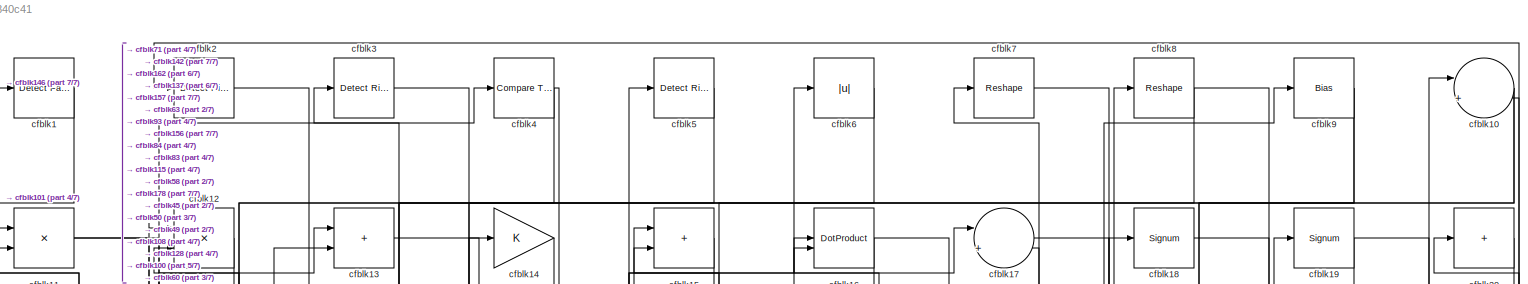
[diagram: root canvas - part 1/7, full width, top band]
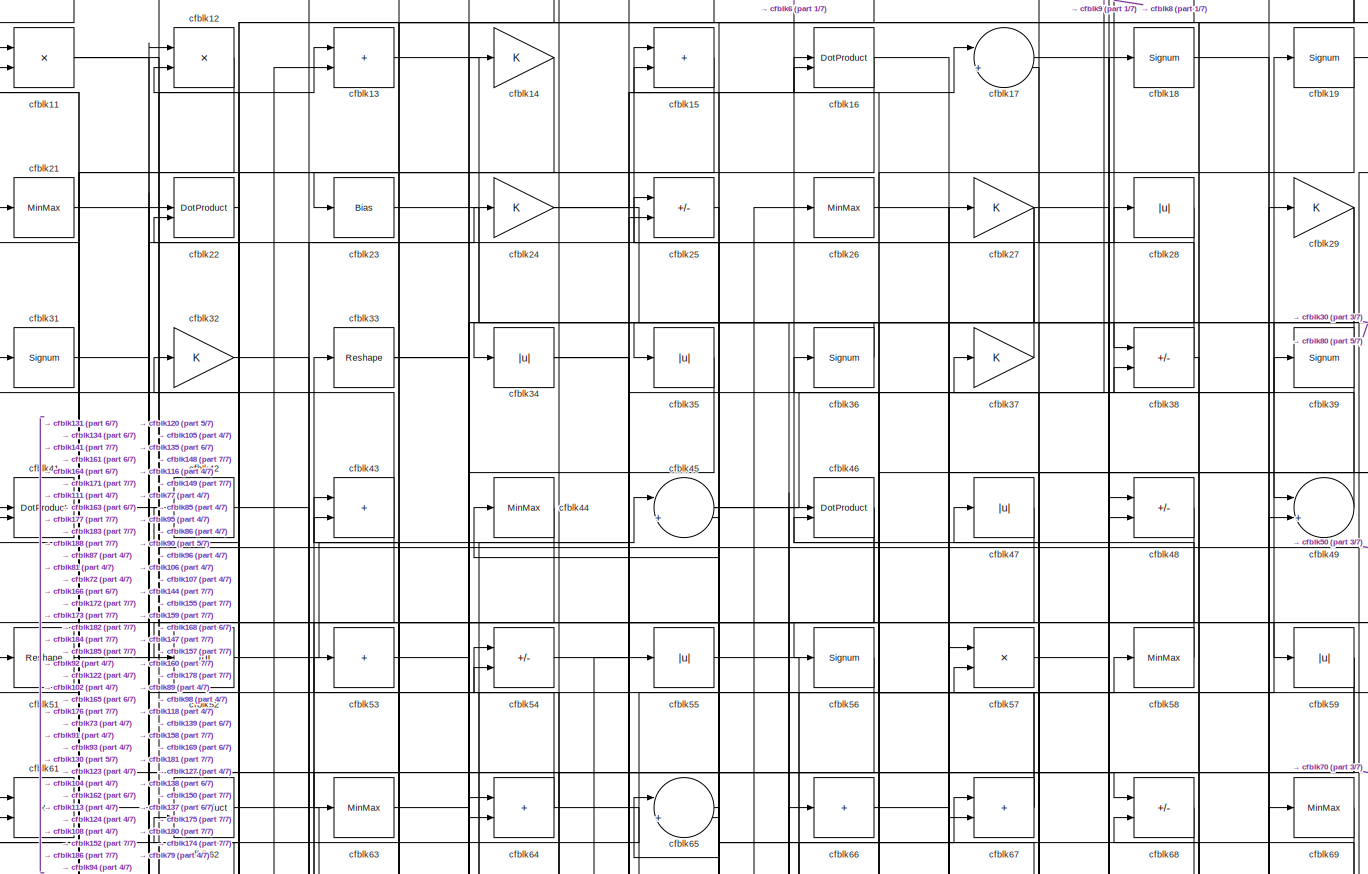
[diagram: root canvas - part 2/7, full width, top band]
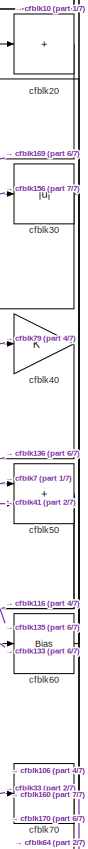
[diagram: root canvas - part 3/7, top right region]
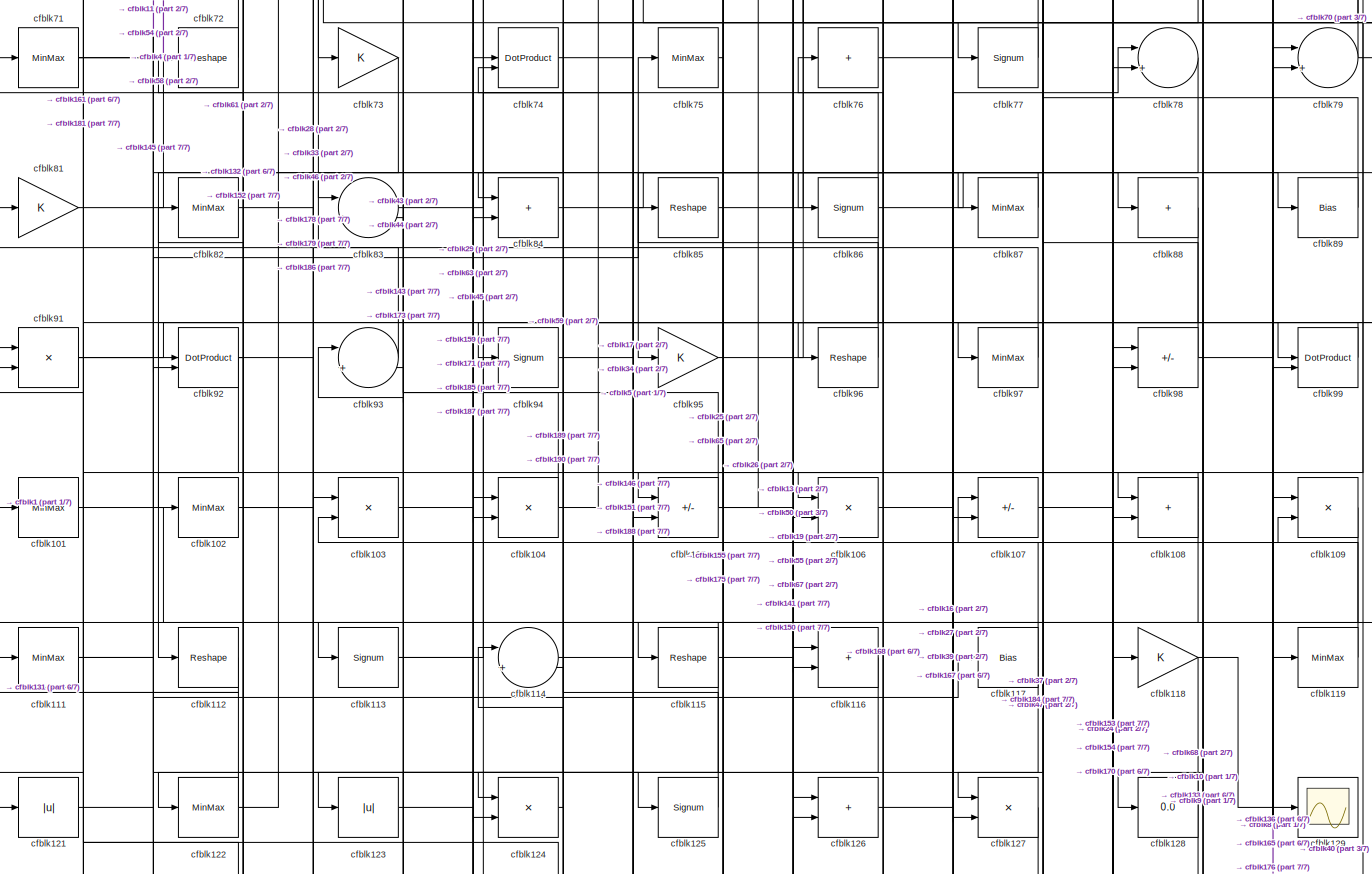
[diagram: root canvas - part 4/7, full width, middle band]
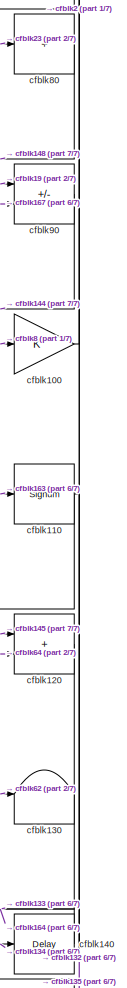
[diagram: root canvas - part 5/7, middle right region]
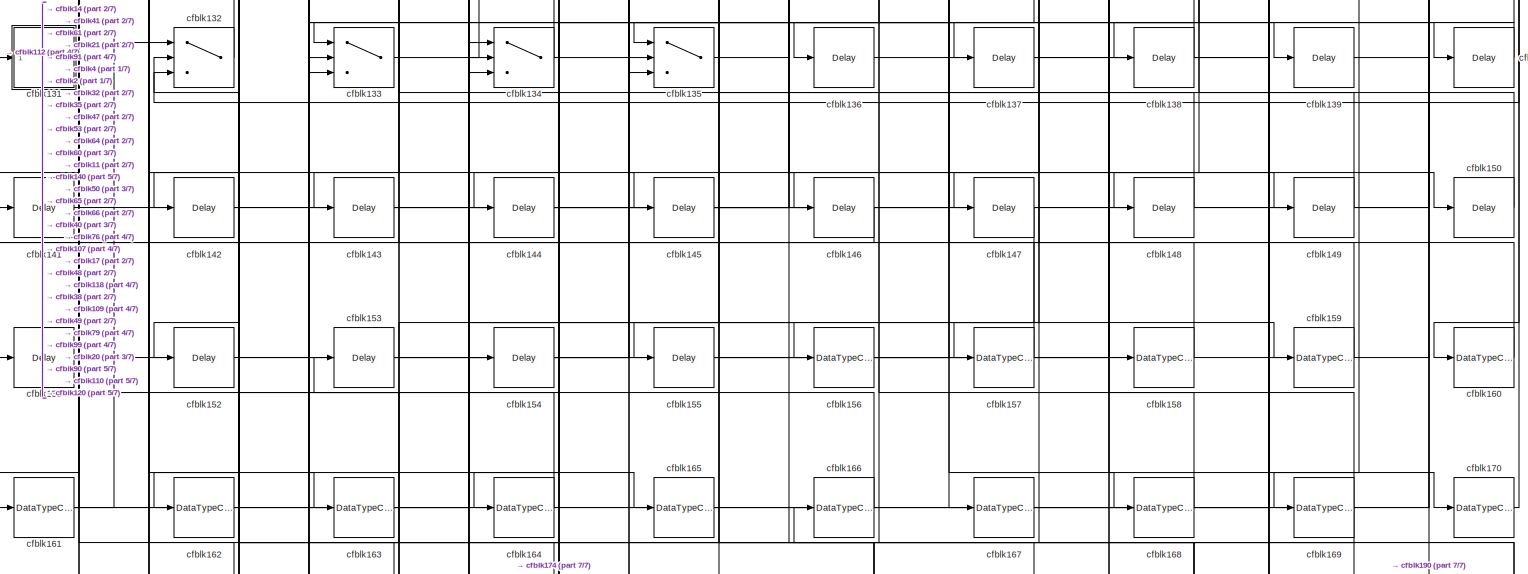
[diagram: root canvas - part 6/7, full width, bottom band]
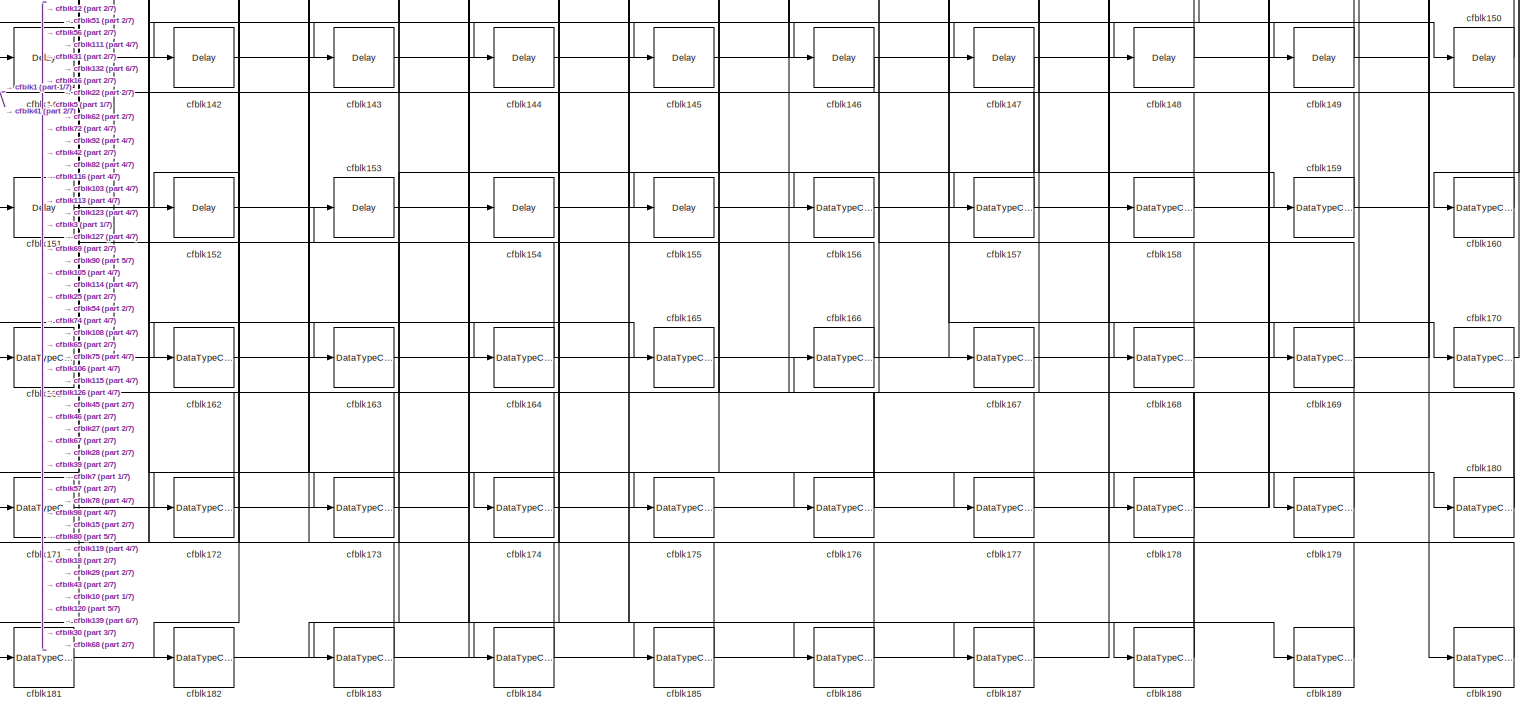
[diagram: root canvas - part 7/7, full width, bottom band]
MODEL slx_db7d32840c41
KIND model
CONFIG AbsTol = auto
CONFIG EnableMultiTasking = off
CONFIG FixedStep = auto
CONFIG MaxStep = auto
CONFIG MinStep = auto
CONFIG RelTol = 1e-3
CONFIG SampleTimeConstraint = Unconstrained
CONFIG SolverName = VariableStepAuto
CONFIG StartTime = 0.0
CONFIG StopTime = 10.0
BLOCK [Reference] cfblk1  REF=hdlsllib/Logic and Bit
Operations/Detect Fall
Nonpositive
  SourceBlock = hdlsllib/Logic and Bit\nOperations/Detect Fall\nNonpositive
  SourceType = Detect Fall Nonpositive
BLOCK [Sum] cfblk10
  Inputs = |++
BLOCK [Gain] cfblk100
BLOCK [MinMax] cfblk101
BLOCK [MinMax] cfblk102
BLOCK [Product] cfblk103
  Inputs = */
  RndMeth = Zero
  SaturateOnIntegerOverflow = on
BLOCK [Product] cfblk104
  Inputs = */
  RndMeth = Zero
  SaturateOnIntegerOverflow = on
BLOCK [Sum] cfblk105
  IconShape = rectangular
  Inputs = +-
BLOCK [Product] cfblk106
  Inputs = */
  RndMeth = Zero
  SaturateOnIntegerOverflow = on
BLOCK [Sum] cfblk107
  IconShape = rectangular
  Inputs = +-
BLOCK [Sum] cfblk108
  IconShape = rectangular
BLOCK [Product] cfblk109
  Inputs = */
  RndMeth = Zero
  SaturateOnIntegerOverflow = on
BLOCK [Product] cfblk11
  Inputs = */
  RndMeth = Zero
  SaturateOnIntegerOverflow = on
BLOCK [Signum] cfblk110
BLOCK [MinMax] cfblk111
BLOCK [Reshape] cfblk112
BLOCK [Signum] cfblk113
BLOCK [Sum] cfblk114
  Inputs = |++
BLOCK [Reshape] cfblk115
BLOCK [Sum] cfblk116
  IconShape = rectangular
BLOCK [Bias] cfblk117
  Bias = 0.0
  SaturateOnIntegerOverflow = off
BLOCK [Gain] cfblk118
BLOCK [MinMax] cfblk119
BLOCK [Product] cfblk12
  Inputs = */
  RndMeth = Zero
  SaturateOnIntegerOverflow = on
BLOCK [Sum] cfblk120
  IconShape = rectangular
BLOCK [Abs] cfblk121
  SaturateOnIntegerOverflow = off
BLOCK [MinMax] cfblk122
BLOCK [Abs] cfblk123
  SaturateOnIntegerOverflow = off
BLOCK [Product] cfblk124
  Inputs = */
  RndMeth = Zero
  SaturateOnIntegerOverflow = on
BLOCK [Signum] cfblk125
BLOCK [Sum] cfblk126
  IconShape = rectangular
BLOCK [Product] cfblk127
  Inputs = */
  RndMeth = Zero
  SaturateOnIntegerOverflow = on
BLOCK [Display] cfblk128
  Decimation = 1
BLOCK [Scope] cfblk129
  Floating = off
  NumInputPorts = 1
  ScopeSpecificationString = Simulink.scopes.TimeScopeBlockCfg('CurrentConfiguration', extmgr.ConfigurationSet(extmgr.Configuration('Core','General UI',true),extmgr.Configuration('Core','Source UI',true),extmgr.Configuration('Sources','WiredSimulink',true,'DataLoggingVariableName','ScopeData2','DataLoggingSaveFormat','Array','DataLoggingLimitDataPoints',true,'DataLoggingDecimation','1'),extmgr.Configuration('Visuals','Time Do...<+868ch>
BLOCK [Sum] cfblk13
  IconShape = rectangular
BLOCK [Terminator] cfblk130
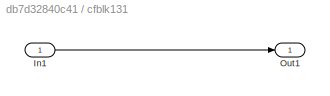
BLOCK [SubSystem] cfblk131
  LibrarySourceBlock = hdlsllib/Ports &\nSubsystems/Subsystem
BLOCK [Inport] cfblk131/In1
BLOCK [Outport] cfblk131/Out1
BLOCK [Switch] cfblk132
  InputSameDT = off
  SaturateOnIntegerOverflow = off
BLOCK [Switch] cfblk133
  InputSameDT = off
  SaturateOnIntegerOverflow = off
BLOCK [Switch] cfblk134
  InputSameDT = off
  SaturateOnIntegerOverflow = off
BLOCK [Switch] cfblk135
  InputSameDT = off
  SaturateOnIntegerOverflow = off
BLOCK [Delay] cfblk136
  InputPortMap = u0
  SampleTime = 1
BLOCK [Delay] cfblk137
  InputPortMap = u0
  SampleTime = 1
BLOCK [Delay] cfblk138
  InputPortMap = u0
  SampleTime = 1
BLOCK [Delay] cfblk139
  InputPortMap = u0
  SampleTime = 1
BLOCK [Gain] cfblk14
BLOCK [Delay] cfblk140
  InputPortMap = u0
  SampleTime = 1
BLOCK [Delay] cfblk141
  InputPortMap = u0
  SampleTime = 1
BLOCK [Delay] cfblk142
  InputPortMap = u0
  SampleTime = 1
BLOCK [Delay] cfblk143
  InputPortMap = u0
  SampleTime = 1
BLOCK [Delay] cfblk144
  InputPortMap = u0
  SampleTime = 1
BLOCK [Delay] cfblk145
  InputPortMap = u0
  SampleTime = 1
BLOCK [Delay] cfblk146
  InputPortMap = u0
  SampleTime = 1
BLOCK [Delay] cfblk147
  InputPortMap = u0
  SampleTime = 1
BLOCK [Delay] cfblk148
  InputPortMap = u0
  SampleTime = 1
BLOCK [Delay] cfblk149
  InputPortMap = u0
  SampleTime = 1
BLOCK [Sum] cfblk15
  IconShape = rectangular
BLOCK [Delay] cfblk150
  InputPortMap = u0
  SampleTime = 1
BLOCK [Delay] cfblk151
  InputPortMap = u0
  SampleTime = 1
BLOCK [Delay] cfblk152
  InputPortMap = u0
  SampleTime = 1
BLOCK [Delay] cfblk153
  InputPortMap = u0
  SampleTime = 1
BLOCK [Delay] cfblk154
  InputPortMap = u0
  SampleTime = 1
BLOCK [Delay] cfblk155
  InputPortMap = u0
  SampleTime = 1
BLOCK [DataTypeConversion] cfblk156
  OutDataTypeStr = uint8
  RndMeth = Floor
  SaturateOnIntegerOverflow = off
BLOCK [DataTypeConversion] cfblk157
  OutDataTypeStr = uint8
  RndMeth = Floor
  SaturateOnIntegerOverflow = off
BLOCK [DataTypeConversion] cfblk158
  OutDataTypeStr = uint8
  RndMeth = Floor
  SaturateOnIntegerOverflow = off
BLOCK [DataTypeConversion] cfblk159
  OutDataTypeStr = uint8
  RndMeth = Floor
  SaturateOnIntegerOverflow = off
BLOCK [DotProduct] cfblk16
  OutDataTypeStr = Inherit: Inherit via internal rule
BLOCK [DataTypeConversion] cfblk160
  OutDataTypeStr = uint8
  RndMeth = Floor
  SaturateOnIntegerOverflow = off
BLOCK [DataTypeConversion] cfblk161
  RndMeth = Floor
  SaturateOnIntegerOverflow = off
BLOCK [DataTypeConversion] cfblk162
  OutDataTypeStr = uint8
  RndMeth = Floor
  SaturateOnIntegerOverflow = off
BLOCK [DataTypeConversion] cfblk163
  OutDataTypeStr = uint8
  RndMeth = Floor
  SaturateOnIntegerOverflow = off
BLOCK [DataTypeConversion] cfblk164
  OutDataTypeStr = uint8
  RndMeth = Floor
  SaturateOnIntegerOverflow = off
BLOCK [DataTypeConversion] cfblk165
  OutDataTypeStr = uint8
  RndMeth = Floor
  SaturateOnIntegerOverflow = off
BLOCK [DataTypeConversion] cfblk166
  OutDataTypeStr = uint8
  RndMeth = Floor
  SaturateOnIntegerOverflow = off
BLOCK [DataTypeConversion] cfblk167
  OutDataTypeStr = uint8
  RndMeth = Floor
  SaturateOnIntegerOverflow = off
BLOCK [DataTypeConversion] cfblk168
  OutDataTypeStr = uint8
  RndMeth = Floor
  SaturateOnIntegerOverflow = off
BLOCK [DataTypeConversion] cfblk169
  RndMeth = Floor
  SaturateOnIntegerOverflow = off
BLOCK [Sum] cfblk17
  Inputs = |++
BLOCK [DataTypeConversion] cfblk170
  OutDataTypeStr = uint8
  RndMeth = Floor
  SaturateOnIntegerOverflow = off
BLOCK [DataTypeConversion] cfblk171
  OutDataTypeStr = uint8
  RndMeth = Floor
  SaturateOnIntegerOverflow = off
BLOCK [DataTypeConversion] cfblk172
  OutDataTypeStr = uint8
  RndMeth = Floor
  SaturateOnIntegerOverflow = off
BLOCK [DataTypeConversion] cfblk173
  OutDataTypeStr = uint8
  RndMeth = Floor
  SaturateOnIntegerOverflow = off
BLOCK [DataTypeConversion] cfblk174
  RndMeth = Floor
  SaturateOnIntegerOverflow = off
BLOCK [DataTypeConversion] cfblk175
  OutDataTypeStr = uint8
  RndMeth = Floor
  SaturateOnIntegerOverflow = off
BLOCK [DataTypeConversion] cfblk176
  RndMeth = Floor
  SaturateOnIntegerOverflow = off
BLOCK [DataTypeConversion] cfblk177
  OutDataTypeStr = uint8
  RndMeth = Floor
  SaturateOnIntegerOverflow = off
BLOCK [DataTypeConversion] cfblk178
  RndMeth = Floor
  SaturateOnIntegerOverflow = off
BLOCK [DataTypeConversion] cfblk179
  OutDataTypeStr = uint8
  RndMeth = Floor
  SaturateOnIntegerOverflow = off
BLOCK [Signum] cfblk18
BLOCK [DataTypeConversion] cfblk180
  RndMeth = Floor
  SaturateOnIntegerOverflow = off
BLOCK [DataTypeConversion] cfblk181
  OutDataTypeStr = uint8
  RndMeth = Floor
  SaturateOnIntegerOverflow = off
BLOCK [DataTypeConversion] cfblk182
  RndMeth = Floor
  SaturateOnIntegerOverflow = off
BLOCK [DataTypeConversion] cfblk183
  OutDataTypeStr = uint8
  RndMeth = Floor
  SaturateOnIntegerOverflow = off
BLOCK [DataTypeConversion] cfblk184
  OutDataTypeStr = uint8
  RndMeth = Floor
  SaturateOnIntegerOverflow = off
BLOCK [DataTypeConversion] cfblk185
  OutDataTypeStr = uint8
  RndMeth = Floor
  SaturateOnIntegerOverflow = off
BLOCK [DataTypeConversion] cfblk186
  OutDataTypeStr = uint8
  RndMeth = Floor
  SaturateOnIntegerOverflow = off
BLOCK [DataTypeConversion] cfblk187
  OutDataTypeStr = uint8
  RndMeth = Floor
  SaturateOnIntegerOverflow = off
BLOCK [DataTypeConversion] cfblk188
  RndMeth = Floor
  SaturateOnIntegerOverflow = off
BLOCK [DataTypeConversion] cfblk189
  OutDataTypeStr = uint8
  RndMeth = Floor
  SaturateOnIntegerOverflow = off
BLOCK [Signum] cfblk19
BLOCK [DataTypeConversion] cfblk190
  OutDataTypeStr = uint8
  RndMeth = Floor
  SaturateOnIntegerOverflow = off
BLOCK [Reference] cfblk2  REF=hdlsllib/Logic and Bit
Operations/Detect Rise
Positive
  SourceBlock = hdlsllib/Logic and Bit\nOperations/Detect Rise\nPositive
  SourceType = Detect Rise Positive
BLOCK [Sum] cfblk20
  IconShape = rectangular
  Inputs = +
BLOCK [MinMax] cfblk21
BLOCK [DotProduct] cfblk22
  OutDataTypeStr = Inherit: Inherit via internal rule
BLOCK [Bias] cfblk23
  Bias = 0.0
  SaturateOnIntegerOverflow = off
BLOCK [Gain] cfblk24
BLOCK [Sum] cfblk25
  IconShape = rectangular
  Inputs = +-
BLOCK [MinMax] cfblk26
BLOCK [Gain] cfblk27
BLOCK [Abs] cfblk28
  SaturateOnIntegerOverflow = off
BLOCK [Gain] cfblk29
BLOCK [Reference] cfblk3  REF=hdlsllib/Logic and Bit
Operations/Detect Rise
Nonnegative
  SourceBlock = hdlsllib/Logic and Bit\nOperations/Detect Rise\nNonnegative
  SourceType = Detect Rise Nonnegative
BLOCK [Abs] cfblk30
  SaturateOnIntegerOverflow = off
BLOCK [Signum] cfblk31
BLOCK [Gain] cfblk32
BLOCK [Reshape] cfblk33
BLOCK [Abs] cfblk34
  SaturateOnIntegerOverflow = off
BLOCK [Abs] cfblk35
  SaturateOnIntegerOverflow = off
BLOCK [Signum] cfblk36
BLOCK [Gain] cfblk37
BLOCK [Sum] cfblk38
  IconShape = rectangular
  Inputs = +-
BLOCK [Signum] cfblk39
BLOCK [Reference] cfblk4  REF=hdlsllib/Logic and Bit
Operations/Compare
To Constant
  SourceBlock = hdlsllib/Logic and Bit\nOperations/Compare\nTo Constant
  SourceType = Compare To Constant
BLOCK [Gain] cfblk40
BLOCK [DotProduct] cfblk41
  OutDataTypeStr = Inherit: Inherit via internal rule
BLOCK [Sum] cfblk42
  IconShape = rectangular
  Inputs = +
BLOCK [Sum] cfblk43
  IconShape = rectangular
BLOCK [MinMax] cfblk44
BLOCK [Sum] cfblk45
  Inputs = |++
BLOCK [DotProduct] cfblk46
  OutDataTypeStr = Inherit: Inherit via internal rule
BLOCK [Abs] cfblk47
  SaturateOnIntegerOverflow = off
BLOCK [Sum] cfblk48
  IconShape = rectangular
  Inputs = +-
BLOCK [Sum] cfblk49
  Inputs = |++
BLOCK [Reference] cfblk5  REF=hdlsllib/Logic and Bit
Operations/Detect Rise
Positive
  SourceBlock = hdlsllib/Logic and Bit\nOperations/Detect Rise\nPositive
  SourceType = Detect Rise Positive
BLOCK [Sum] cfblk50
  IconShape = rectangular
BLOCK [Reshape] cfblk51
BLOCK [Abs] cfblk52
  SaturateOnIntegerOverflow = off
BLOCK [Sum] cfblk53
  IconShape = rectangular
  Inputs = +
BLOCK [Sum] cfblk54
  IconShape = rectangular
  Inputs = +-
BLOCK [Abs] cfblk55
  SaturateOnIntegerOverflow = off
BLOCK [Signum] cfblk56
BLOCK [Product] cfblk57
  Inputs = */
  RndMeth = Zero
  SaturateOnIntegerOverflow = on
BLOCK [MinMax] cfblk58
BLOCK [Abs] cfblk59
  SaturateOnIntegerOverflow = off
BLOCK [Abs] cfblk6
  SaturateOnIntegerOverflow = off
BLOCK [Bias] cfblk60
  Bias = 0.0
  SaturateOnIntegerOverflow = off
BLOCK [Sum] cfblk61
  IconShape = rectangular
BLOCK [DotProduct] cfblk62
  OutDataTypeStr = Inherit: Inherit via internal rule
BLOCK [MinMax] cfblk63
BLOCK [Sum] cfblk64
  IconShape = rectangular
BLOCK [Sum] cfblk65
  Inputs = |++
BLOCK [Sum] cfblk66
  IconShape = rectangular
  Inputs = +
BLOCK [Sum] cfblk67
  IconShape = rectangular
BLOCK [Sum] cfblk68
  IconShape = rectangular
  Inputs = +-
BLOCK [MinMax] cfblk69
BLOCK [Reshape] cfblk7
BLOCK [Sum] cfblk70
  IconShape = rectangular
  Inputs = +
BLOCK [MinMax] cfblk71
BLOCK [Reshape] cfblk72
BLOCK [Gain] cfblk73
BLOCK [DotProduct] cfblk74
  OutDataTypeStr = Inherit: Inherit via internal rule
BLOCK [MinMax] cfblk75
BLOCK [Sum] cfblk76
  IconShape = rectangular
  Inputs = +
BLOCK [Signum] cfblk77
BLOCK [Sum] cfblk78
  Inputs = |++
BLOCK [Sum] cfblk79
  Inputs = |++
BLOCK [Reshape] cfblk8
BLOCK [Sum] cfblk80
  IconShape = rectangular
  Inputs = +
BLOCK [Gain] cfblk81
BLOCK [MinMax] cfblk82
BLOCK [Sum] cfblk83
  Inputs = |++
BLOCK [Sum] cfblk84
  IconShape = rectangular
BLOCK [Reshape] cfblk85
BLOCK [Signum] cfblk86
BLOCK [MinMax] cfblk87
BLOCK [Sum] cfblk88
  IconShape = rectangular
  Inputs = +
BLOCK [Bias] cfblk89
  Bias = 0.0
  SaturateOnIntegerOverflow = off
BLOCK [Bias] cfblk9
  Bias = 0.0
  SaturateOnIntegerOverflow = off
BLOCK [Sum] cfblk90
  IconShape = rectangular
  Inputs = +-
BLOCK [Product] cfblk91
  Inputs = */
  RndMeth = Zero
  SaturateOnIntegerOverflow = on
BLOCK [DotProduct] cfblk92
  OutDataTypeStr = Inherit: Inherit via internal rule
BLOCK [Sum] cfblk93
  Inputs = |++
BLOCK [Signum] cfblk94
BLOCK [Gain] cfblk95
BLOCK [Reshape] cfblk96
BLOCK [MinMax] cfblk97
BLOCK [Sum] cfblk98
  IconShape = rectangular
  Inputs = +-
BLOCK [DotProduct] cfblk99
  OutDataTypeStr = Inherit: Inherit via internal rule
LINE cfblk100:1 -> cfblk2:1
LINE cfblk101:1 -> cfblk126:1
NET cfblk102:1 -> cfblk125:1, cfblk28:1
LINE cfblk103:1 -> cfblk185:1
NET cfblk104:1 -> cfblk55:1, cfblk83:2
NET cfblk105:1 -> cfblk109:2, cfblk26:1, cfblk43:1, cfblk65:2
LINE cfblk106:1 -> cfblk39:1
LINE cfblk107:1 -> cfblk170:1
NET cfblk108:1 -> cfblk102:1, cfblk175:1
LINE cfblk109:1 -> cfblk121:1
NET cfblk10:1 -> cfblk115:1, cfblk128:1
NET cfblk110:1 -> cfblk132:2, cfblk135:2
NET cfblk111:1 -> cfblk145:1, cfblk54:2
LINE cfblk112:1 -> cfblk131:1
NET cfblk113:1 -> cfblk187:1, cfblk45:1
LINE cfblk114:1 -> cfblk188:1
NET cfblk115:1 -> cfblk113:1, cfblk150:1, cfblk173:1
LINE cfblk116:1 -> cfblk143:1
NET cfblk117:1 -> cfblk122:1, cfblk93:1
NET cfblk118:1 -> cfblk129:1, cfblk133:3
LINE cfblk119:1 -> cfblk107:1
NET cfblk11:1 -> cfblk56:1, cfblk87:1
LINE cfblk120:1 -> cfblk164:1
LINE cfblk121:1 -> cfblk117:1
NET cfblk122:1 -> cfblk11:1, cfblk13:2
LINE cfblk123:1 -> cfblk159:1
LINE cfblk124:1 -> cfblk54:1
LINE cfblk125:1 -> cfblk71:1
LINE cfblk126:1 -> cfblk78:1
LINE cfblk127:1 -> cfblk184:1
LINE cfblk12:1 -> cfblk171:1
LINE cfblk131/In1:1 -> cfblk131/Out1:1
LINE cfblk131:1 -> cfblk61:2
LINE cfblk132:1 -> cfblk91:1
LINE cfblk133:1 -> cfblk60:1
NET cfblk134:1 -> cfblk11:2, cfblk140:1
LINE cfblk135:1 -> cfblk66:1
LINE cfblk136:1 -> cfblk79:2
LINE cfblk137:1 -> cfblk49:2
LINE cfblk138:1 -> cfblk133:2
LINE cfblk139:1 -> cfblk190:1
LINE cfblk13:1 -> cfblk116:1
LINE cfblk140:1 -> cfblk133:1
LINE cfblk141:1 -> cfblk126:2
LINE cfblk142:1 -> cfblk10:1
LINE cfblk143:1 -> cfblk106:2
LINE cfblk144:1 -> cfblk67:2
LINE cfblk145:1 -> cfblk120:1
LINE cfblk146:1 -> cfblk1:1
LINE cfblk147:1 -> cfblk183:1
LINE cfblk148:1 -> cfblk15:2
LINE cfblk149:1 -> cfblk43:2
LINE cfblk14:1 -> cfblk161:1
LINE cfblk150:1 -> cfblk68:2
LINE cfblk151:1 -> cfblk105:2
LINE cfblk152:1 -> cfblk25:2
LINE cfblk153:1 -> cfblk98:2
LINE cfblk154:1 -> cfblk78:2
LINE cfblk155:1 -> cfblk27:1
LINE cfblk156:1 -> cfblk30:1
LINE cfblk157:1 -> cfblk3:1
LINE cfblk158:1 -> cfblk41:1
LINE cfblk159:1 -> cfblk57:1
LINE cfblk15:1 -> cfblk23:1
LINE cfblk160:1 -> cfblk57:2
NET cfblk161:1 -> cfblk109:1, cfblk132:1, cfblk41:2, cfblk64:1
LINE cfblk162:1 -> cfblk14:1
LINE cfblk163:1 -> cfblk110:1
LINE cfblk164:1 -> cfblk21:1
LINE cfblk165:1 -> cfblk99:2
LINE cfblk166:1 -> cfblk32:1
LINE cfblk167:1 -> cfblk90:2
LINE cfblk168:1 -> cfblk76:1
NET cfblk169:1 -> cfblk166:1, cfblk48:1
NET cfblk16:1 -> cfblk107:2, cfblk172:1
LINE cfblk170:1 -> cfblk20:1
LINE cfblk171:1 -> cfblk74:1
LINE cfblk172:1 -> cfblk12:1
LINE cfblk173:1 -> cfblk12:2
NET cfblk174:1 -> cfblk132:3, cfblk29:1
LINE cfblk175:1 -> cfblk69:1
NET cfblk176:1 -> cfblk119:1, cfblk153:1, cfblk51:1, cfblk72:1
LINE cfblk177:1 -> cfblk42:1
NET cfblk178:1 -> cfblk151:1, cfblk45:2, cfblk65:1, cfblk7:1
LINE cfblk179:1 -> cfblk82:1
LINE cfblk17:1 -> cfblk139:1
NET cfblk180:1 -> cfblk46:1, cfblk46:2
LINE cfblk181:1 -> cfblk18:1
NET cfblk182:1 -> cfblk154:1, cfblk189:1
LINE cfblk183:1 -> cfblk22:1
LINE cfblk184:1 -> cfblk22:2
LINE cfblk185:1 -> cfblk62:2
LINE cfblk186:1 -> cfblk103:1
LINE cfblk187:1 -> cfblk103:2
NET cfblk188:1 -> cfblk62:1, cfblk98:1
LINE cfblk189:1 -> cfblk114:1
LINE cfblk18:1 -> cfblk180:1
LINE cfblk190:1 -> cfblk114:2
NET cfblk19:1 -> cfblk86:1, cfblk90:1
LINE cfblk1:1 -> cfblk101:1
LINE cfblk20:1 -> cfblk169:1
LINE cfblk21:1 -> cfblk163:1
LINE cfblk22:1 -> cfblk182:1
LINE cfblk23:1 -> cfblk80:1
NET cfblk24:1 -> cfblk118:1, cfblk16:2
LINE cfblk25:1 -> cfblk105:1
LINE cfblk26:1 -> cfblk48:2
NET cfblk27:1 -> cfblk127:2, cfblk59:1, cfblk96:1
LINE cfblk28:1 -> cfblk147:1
NET cfblk29:1 -> cfblk104:2, cfblk49:1
LINE cfblk2:1 -> cfblk137:1
NET cfblk30:1 -> cfblk160:1, cfblk64:2
LINE cfblk31:1 -> cfblk177:1
LINE cfblk32:1 -> cfblk165:1
NET cfblk33:1 -> cfblk38:1, cfblk70:1
NET cfblk34:1 -> cfblk108:2, cfblk68:1
LINE cfblk35:1 -> cfblk134:2
LINE cfblk36:1 -> cfblk34:1
LINE cfblk37:1 -> cfblk15:1
NET cfblk38:1 -> cfblk138:1, cfblk17:2
NET cfblk39:1 -> cfblk157:1, cfblk35:1
LINE cfblk3:1 -> cfblk156:1
LINE cfblk40:1 -> cfblk136:1
LINE cfblk41:1 -> cfblk50:2
LINE cfblk42:1 -> cfblk176:1
NET cfblk43:1 -> cfblk31:1, cfblk92:1
LINE cfblk44:1 -> cfblk123:1
NET cfblk45:1 -> cfblk149:1, cfblk9:1
NET cfblk46:1 -> cfblk73:1, cfblk91:2
LINE cfblk47:1 -> cfblk134:3
LINE cfblk48:1 -> cfblk52:1
LINE cfblk49:1 -> cfblk8:1
NET cfblk4:1 -> cfblk162:1, cfblk84:1
NET cfblk50:1 -> cfblk116:2, cfblk135:3
LINE cfblk51:1 -> cfblk13:1
LINE cfblk52:1 -> cfblk38:2
LINE cfblk53:1 -> cfblk134:1
LINE cfblk54:1 -> cfblk186:1
LINE cfblk55:1 -> cfblk77:1
LINE cfblk56:1 -> cfblk141:1
LINE cfblk57:1 -> cfblk158:1
LINE cfblk58:1 -> cfblk6:1
NET cfblk59:1 -> cfblk124:1, cfblk92:2
LINE cfblk5:1 -> cfblk142:1
LINE cfblk60:1 -> cfblk10:2
LINE cfblk61:1 -> cfblk24:1
LINE cfblk62:1 -> cfblk130:1
LINE cfblk63:1 -> cfblk104:1
NET cfblk64:1 -> cfblk120:2, cfblk53:1
LINE cfblk65:1 -> cfblk135:1
LINE cfblk66:1 -> cfblk168:1
NET cfblk67:1 -> cfblk16:1, cfblk36:1
LINE cfblk68:1 -> cfblk127:1
LINE cfblk69:1 -> cfblk174:1
LINE cfblk6:1 -> cfblk63:1
LINE cfblk70:1 -> cfblk106:1
NET cfblk71:1 -> cfblk124:2, cfblk4:1
LINE cfblk72:1 -> cfblk61:1
LINE cfblk73:1 -> cfblk112:1
LINE cfblk74:1 -> cfblk146:1
LINE cfblk75:1 -> cfblk155:1
LINE cfblk76:1 -> cfblk167:1
LINE cfblk77:1 -> cfblk44:1
LINE cfblk78:1 -> cfblk95:1
NET cfblk79:1 -> cfblk25:1, cfblk40:1
LINE cfblk7:1 -> cfblk50:1
LINE cfblk80:1 -> cfblk148:1
LINE cfblk81:1 -> cfblk58:1
LINE cfblk82:1 -> cfblk178:1
LINE cfblk83:1 -> cfblk5:1
LINE cfblk84:1 -> cfblk89:1
LINE cfblk85:1 -> cfblk19:1
NET cfblk86:1 -> cfblk74:2, cfblk88:1, cfblk94:1
LINE cfblk87:1 -> cfblk83:1
LINE cfblk88:1 -> cfblk111:1
LINE cfblk89:1 -> cfblk37:1
NET cfblk8:1 -> cfblk100:1, cfblk93:2
LINE cfblk90:1 -> cfblk144:1
NET cfblk91:1 -> cfblk85:1, cfblk99:1
NET cfblk92:1 -> cfblk152:1, cfblk179:1, cfblk181:1
LINE cfblk93:1 -> cfblk33:1
LINE cfblk94:1 -> cfblk17:1
LINE cfblk95:1 -> cfblk67:1
LINE cfblk96:1 -> cfblk75:1
LINE cfblk97:1 -> cfblk81:1
NET cfblk98:1 -> cfblk47:1, cfblk79:1
LINE cfblk99:1 -> cfblk97:1
NET cfblk9:1 -> cfblk108:1, cfblk84:2
note: NET lines group one-source signal fan-out (src -> all destinations, sorted); 1:1 wires keep LINE
